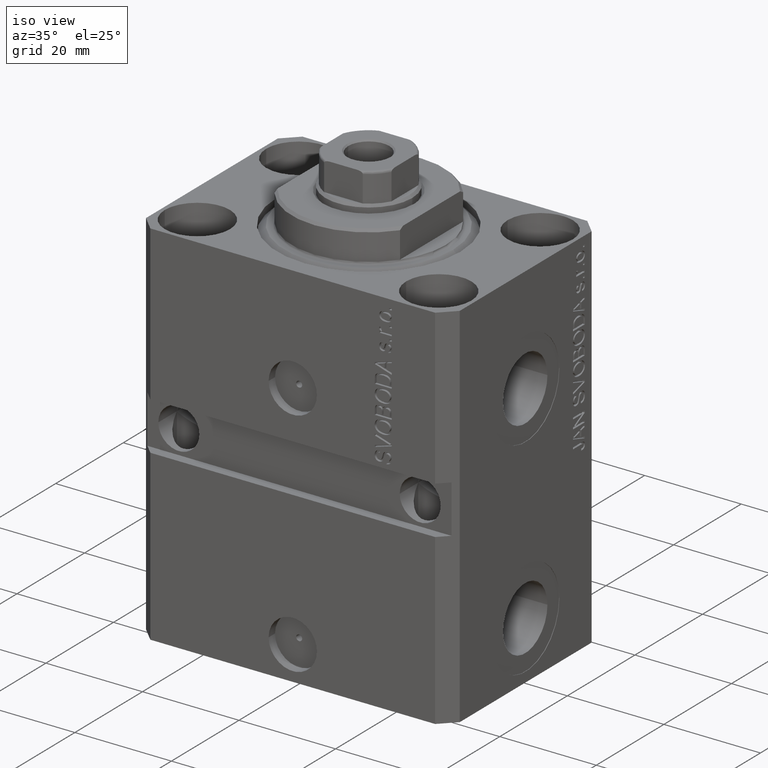
[diagram: clean part render]
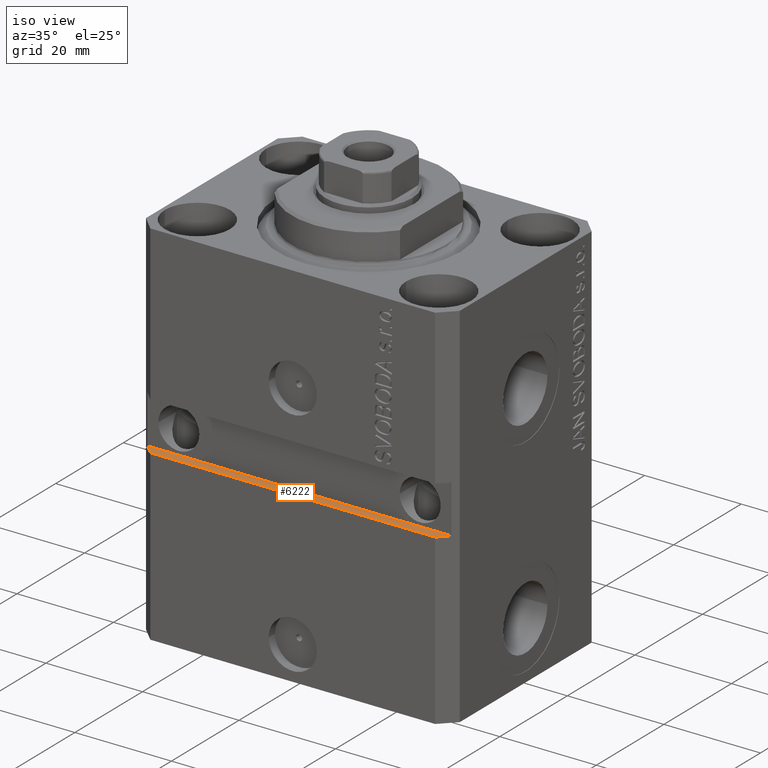
[diagram: same view with one face highlighted and labeled with its STEP entity id]
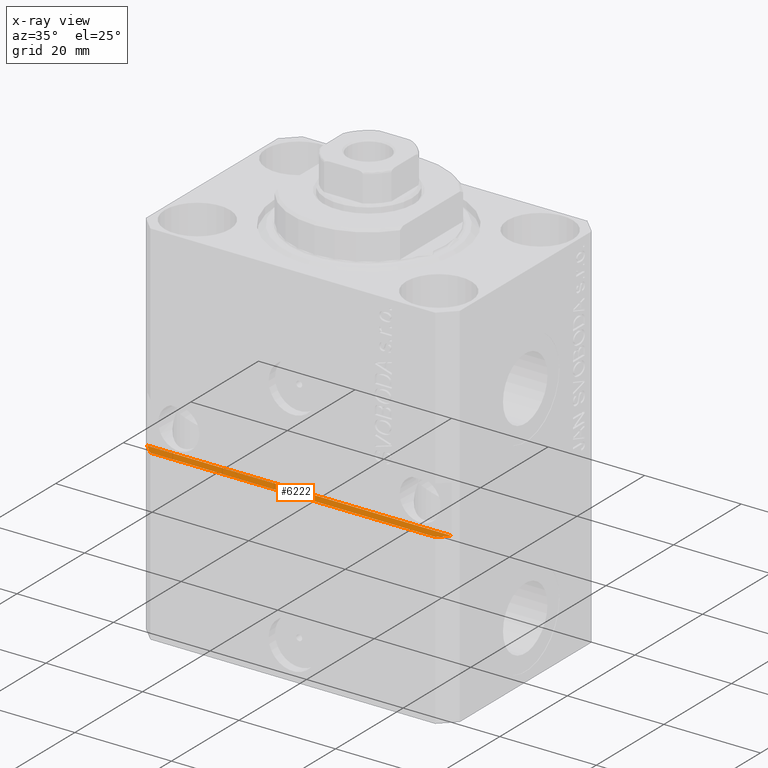
[diagram: x-ray of the same camera — body ghosted, the highlighted face saturated]
A machine part, iso view. The second image highlights one B-rep face of the part: STEP entity #6222.
The next image is the same camera in x-ray: the body ghosted, the highlighted face saturated — about 0% of this face is hidden behind the body in this view.
In plain terms, the highlighted planar face has unit normal (0, 0, -1).
Its self-contained STEP definition (entity closure, byte-faithful):
#1810 = CARTESIAN_POINT ( 'NONE',  ( -32.49999999999650413, -20.49999999999949907, -41.99999999999999289 ) ) ;
#2848 = AXIS2_PLACEMENT_3D ( 'NONE', #1810, #5675, #5205 ) ;
#4484 = DIRECTION ( 'NONE',  ( 0.7071067811865474617, -0.7071067811865474617, 7.548521435980497974E-17 ) ) ;
#4488 = CARTESIAN_POINT ( 'NONE',  ( 31.49999999999650413, -20.49999999999949196, -41.99999999999998579 ) ) ;
#4647 = VECTOR ( 'NONE', #41096, 1000.000000000000000 ) ;
#5065 = EDGE_CURVE ( 'NONE', #21073, #34506, #11724, .T. ) ;
#5205 = DIRECTION ( 'NONE',  ( -1.000000000000000000, 0.000000000000000000, -1.067522139062765303E-16 ) ) ;
#5675 = DIRECTION ( 'NONE',  ( 1.067522139062765303E-16, 1.255495400513475380E-32, -1.000000000000000000 ) ) ;
#5918 = PLANE ( 'NONE',  #2848 ) ;
#6096 = ORIENTED_EDGE ( 'NONE', *, *, #25786, .F. ) ;
#6103 = VERTEX_POINT ( 'NONE', #4488 ) ;
#6222 = ADVANCED_FACE ( 'NONE', ( #8811 ), #5918, .F. ) ;
#8811 = FACE_OUTER_BOUND ( 'NONE', #40696, .T. ) ;
#8878 = VECTOR ( 'NONE', #27796, 1000.000000000000000 ) ;
#11724 = LINE ( 'NONE', #44550, #39808 ) ;
#12443 = LINE ( 'NONE', #37294, #21411 ) ;
#12847 = ORIENTED_EDGE ( 'NONE', *, *, #38716, .T. ) ;
#13100 = ORIENTED_EDGE ( 'NONE', *, *, #5065, .T. ) ;
#16949 = VERTEX_POINT ( 'NONE', #41236 ) ;
#19134 = CARTESIAN_POINT ( 'NONE',  ( -32.49999999999650413, -20.49999999999949907, -41.99999999999999289 ) ) ;
#20546 = CARTESIAN_POINT ( 'NONE',  ( -29.49999999999650413, -22.49999999999949907, -41.99999999999999289 ) ) ;
#21073 = VERTEX_POINT ( 'NONE', #32110 ) ;
#21411 = VECTOR ( 'NONE', #27136, 1000.000000000000000 ) ;
#25293 = ORIENTED_EDGE ( 'NONE', *, *, #45748, .T. ) ;
#25786 = EDGE_CURVE ( 'NONE', #21073, #6103, #40872, .T. ) ;
#27136 = DIRECTION ( 'NONE',  ( 1.000000000000000000, 1.067522139062765303E-16, 1.067522139062765303E-16 ) ) ;
#27796 = DIRECTION ( 'NONE',  ( 0.7071067811865483499, 0.7071067811865466846, 7.548521435980509068E-17 ) ) ;
#31409 = CARTESIAN_POINT ( 'NONE',  ( 29.49999999999650058, -22.49999999999949551, -41.99999999999998579 ) ) ;
#32110 = CARTESIAN_POINT ( 'NONE',  ( -31.49999999999650413, -20.49999999999949907, -41.99999999999999289 ) ) ;
#34506 = VERTEX_POINT ( 'NONE', #20546 ) ;
#37294 = CARTESIAN_POINT ( 'NONE',  ( -32.49999999999650413, -22.49999999999949907, -41.99999999999999289 ) ) ;
#38434 = LINE ( 'NONE', #31409, #8878 ) ;
#38716 = EDGE_CURVE ( 'NONE', #16949, #6103, #38434, .T. ) ;
#39808 = VECTOR ( 'NONE', #4484, 1000.000000000000114 ) ;
#40696 = EDGE_LOOP ( 'NONE', ( #12847, #6096, #13100, #25293 ) ) ;
#40872 = LINE ( 'NONE', #19134, #4647 ) ;
#41096 = DIRECTION ( 'NONE',  ( 1.000000000000000000, 1.067522139062765303E-16, 1.067522139062765303E-16 ) ) ;
#41236 = CARTESIAN_POINT ( 'NONE',  ( 29.49999999999650058, -22.49999999999949196, -41.99999999999998579 ) ) ;
#44550 = CARTESIAN_POINT ( 'NONE',  ( -32.49999999999650413, -19.49999999999949551, -41.99999999999999289 ) ) ;
#45748 = EDGE_CURVE ( 'NONE', #34506, #16949, #12443, .T. ) ;